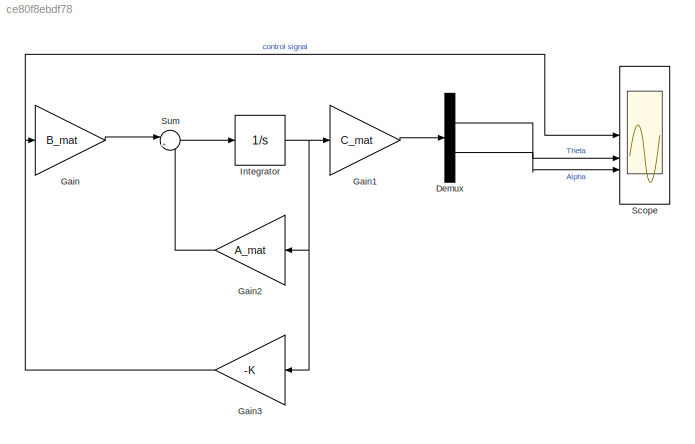
MODEL slx_ce80f8ebdf78
KIND model
CONFIG AbsTol = auto
CONFIG EnableMultiTasking = off
CONFIG FixedStep = auto
CONFIG MaxStep = auto
CONFIG MinStep = auto
CONFIG RelTol = 1e-3
CONFIG SampleTimeConstraint = Unconstrained
CONFIG SolverName = VariableStepAuto
CONFIG StartTime = 0.0
CONFIG StopTime = 10.0
BLOCK [Demux] Demux
  Outputs = 2
BLOCK [Gain] Gain
  Gain = B_mat
  Multiplication = Matrix(K*u)
BLOCK [Gain] Gain1
  Gain = C_mat
  Multiplication = Matrix(K*u)
BLOCK [Gain] Gain2
  Gain = A_mat
  Multiplication = Matrix(K*u)
  NameLocation = top
BLOCK [Gain] Gain3
  Gain = -K
  Multiplication = Matrix(K*u)
  NameLocation = top
BLOCK [Integrator] Integrator
  InitialCondition = [0.9 0.47 0 0]
BLOCK [Scope] Scope
  Floating = off
  NumInputPorts = 3
  ScopeSpecificationString = Simulink.scopes.TimeScopeBlockCfg('CurrentConfiguration', extmgr.ConfigurationSet(extmgr.Configuration('Core','General UI',true),extmgr.Configuration('Core','Source UI',true),extmgr.Configuration('Sources','WiredSimulink',true),extmgr.Configuration('Visuals','Time Domain',true,'SerializedDisplays',{struct('MinYLimReal','-302.22876','MaxYLimReal','34.70683','YLabelReal','','MinYLimMag',' 0.00000','...<+2763ch>
BLOCK [Sum] Sum
  Inputs = |++
LINE Demux:1 -> Scope:2
LINE Demux:2 -> Scope:3
LINE Gain1:1 -> Demux:1
LINE Gain2:1 -> Sum:2
NET Gain3:1 -> Gain:1, Scope:1
LINE Gain:1 -> Sum:1
NET Integrator:1 -> Gain1:1, Gain2:1, Gain3:1
LINE Sum:1 -> Integrator:1
note: NET lines group one-source signal fan-out (src -> all destinations, sorted); 1:1 wires keep LINE
